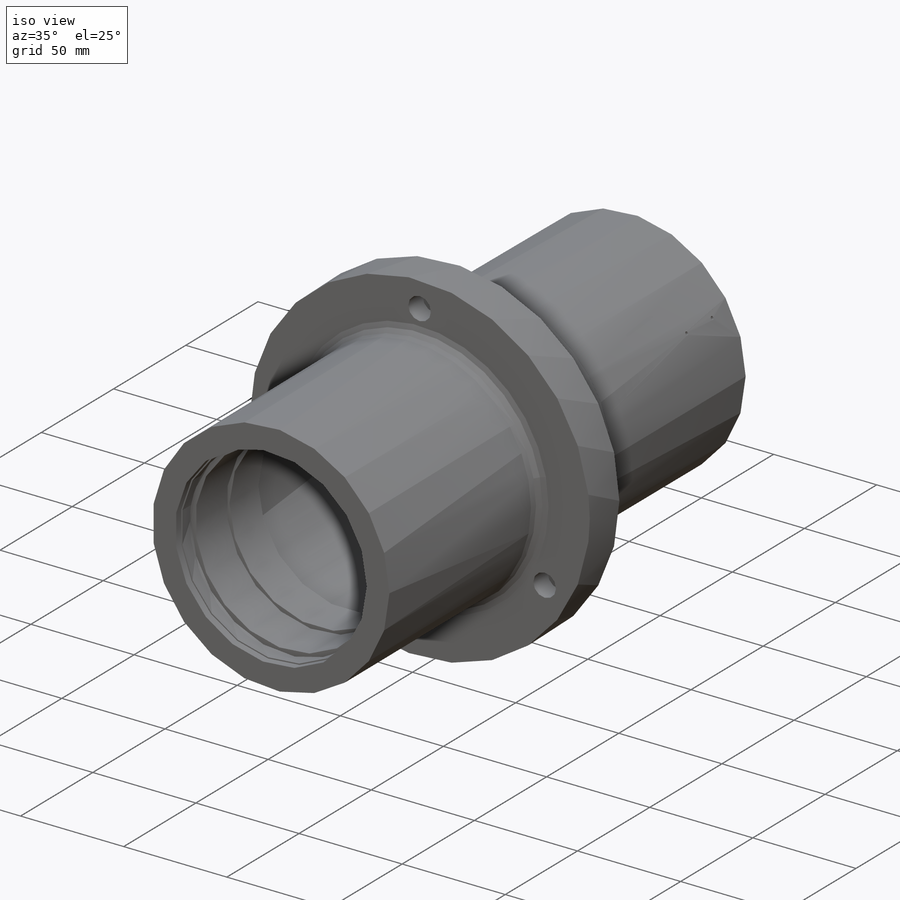
[diagram: iso view]
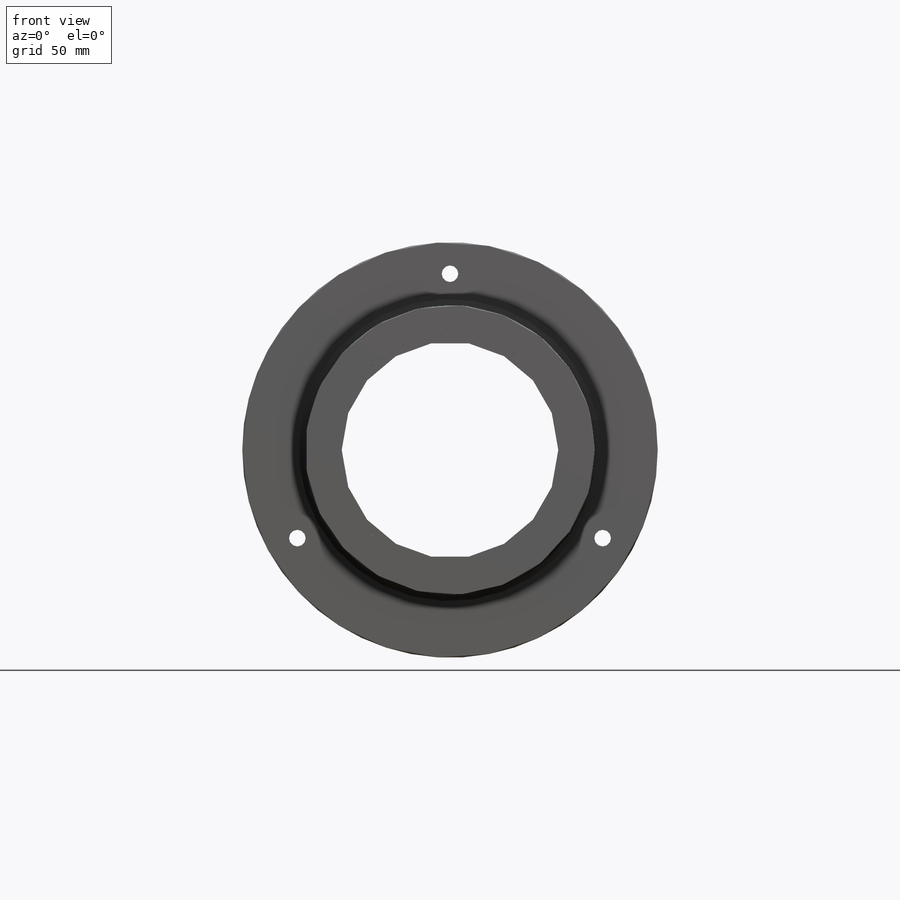
[diagram: front view]
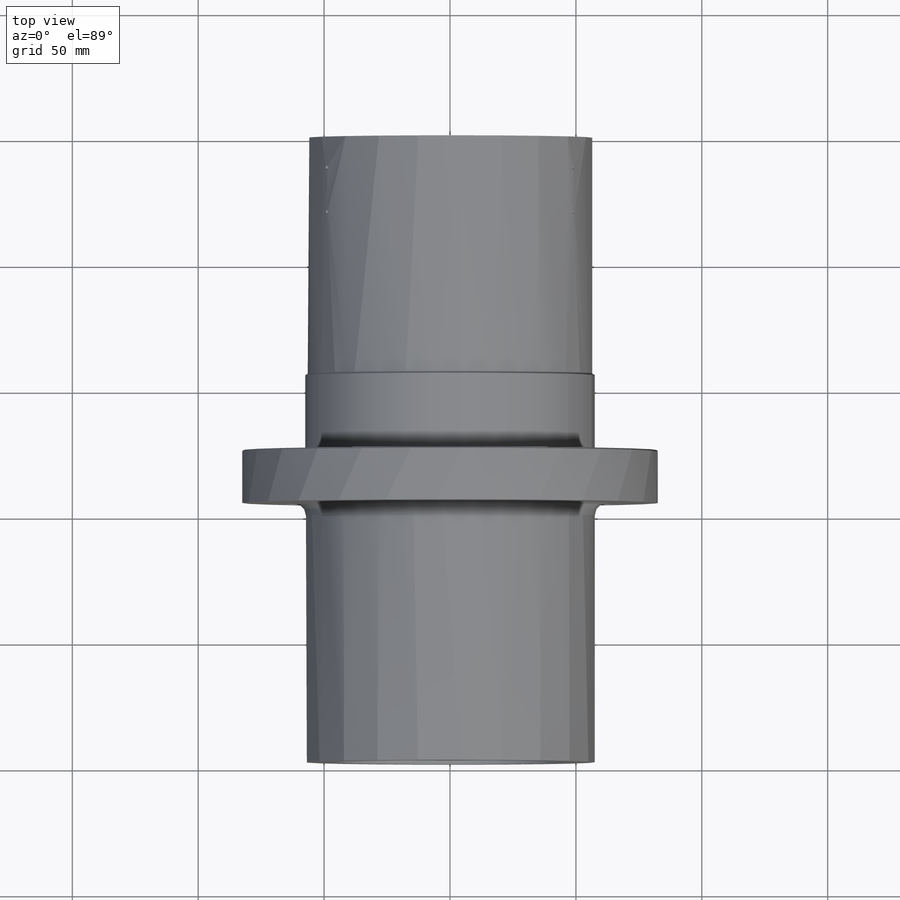
[diagram: top view]
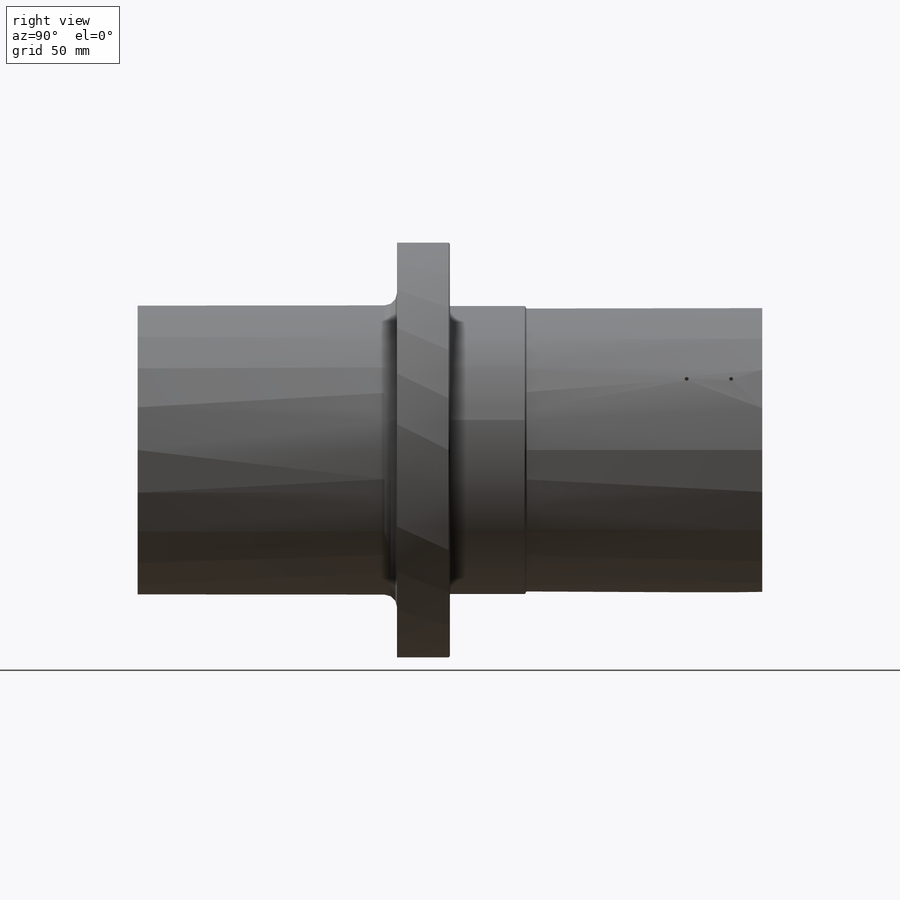
[diagram: right view]
SOLIDWORKS PART (.sldprt)
format: sldprt  version: not decoded by parser v0  size: 726,528 bytes
history: native  units: mm
features: sketch x22, cut_extrude x8, cut_revolve x4, fillet x4, plane x3, hole x3, thread x2, pattern_circular x2, material x1, extrude x1, chamfer x1 (+9 scaffold rows collapsed)
feature tree (60):
  scaffold x9  (default folders/planes/origin — collapsed)
  material  "2024合金"
  plane  "正面"
  plane  "平面"
  plane  "右側面"
  sketch  "ｽｹｯﾁ1"  dims[D1=72.5mm]
  extrude  "押し出し1"  Depth=248.07mm
  sketch  "ｽｹｯﾁ2"  dims[D1=124.07mm]
  cut_revolve  "ｶｯﾄ - 回転1"  Angle=360deg
  fillet  "ﾌｨﾚｯﾄ1"  Radius=5mm
  sketch  "ｽｹｯﾁ6"  dims[D1=~42.659187mm]
  cut_extrude  "ｶｯﾄ - 押し出し2"  Depth=3.557mm
  sketch  "ｽｹｯﾁ7"  dims[D1=~38.231102mm]
  cut_extrude  "ｶｯﾄ - 押し出し3"  [1 undecoded]
  sketch  "ｽｹｯﾁ8"  dims[D1=~44.605701mm]
  cut_extrude  "ｶｯﾄ - 押し出し4"  Depth=32.73mm
  sketch  "ｽｹｯﾁ9"  dims[D1=~46.234031mm]
  cut_extrude  "ｶｯﾄ - 押し出し5"  Depth=3.522mm
  sketch  "ｽｹｯﾁ11"  dims[D1=~46.453815mm]
  cut_extrude  "ｶｯﾄ - 押し出し7"  Depth=37.493mm
  sketch  "ｽｹｯﾁ12"  dims[D1=~38.91348mm]
  cut_extrude  "ｶｯﾄ - 押し出し8"  Depth=195.35mm
  sketch  "ｽｹｯﾁ16"  dims[D1=~45.073205mm]
  cut_extrude  "ｶｯﾄ - 押し出し10"  [1 undecoded]
  thread  "ねじ山2"  Diameter=6mm  [1 undecoded]
  sketch  "ｽｹｯﾁ17"  dims[D1=~43.448577mm]
  cut_extrude  "ｶｯﾄ - 押し出し11"  [1 undecoded]
  thread  "ねじ山1"  Diameter=6mm faceID=5  [1 undecoded]
  sketch  "ｽｹｯﾁ19"
  sketch  "ｽｹｯﾁ22"  dims[D1=~64.425041mm]
  hole  "M6 穴付きねじ用座ぐり穴1"  [1 undecoded]
  sketch  "3Dｽｹｯﾁ4"
  sketch  "ｽｹｯﾁ24"  dims[hole-wizard template sketch: 41 standard entries collapsed; hole parameters kept: c12.通し穴の直径=6.6mm c12.通し穴の深さ=145.07mm c12.座ぐり穴の直径=11.0mm c12.座ぐり穴の深さ=10.0mm]
  pattern_circular  "円形ﾊﾟﾀｰﾝ1"  Count=3 Angle=360deg
  sketch  "ｽｹｯﾁ25"  dims[D1=1.543mm]
  cut_revolve  "ｶｯﾄ - 回転2"  Angle=360deg
  sketch  "ｽｹｯﾁ26"
  cut_revolve  "ｶｯﾄ - 回転3"  Angle=360deg
  hole  "M2x0.4 ねじ穴1"  [1 undecoded]
  sketch  "3Dｽｹｯﾁ5"
  sketch  "ｽｹｯﾁ27"  dims[hole-wizard template sketch: 39 standard entries collapsed; hole parameters kept: c13.ねじ下穴ﾄﾞﾘﾙの直径=1.6mm c13.ねじ下穴ﾄﾞﾘﾙの深さ=12.0mm c13.表面の皿穴の直径=2.5mm c13.D4=~33.297463mm c13.表面の皿穴の角度=90.0deg c14.D5=~14.816244mm c14.ﾄﾞﾘﾙ角度=118.0deg]
  chamfer  "面取り1"  Distance=0.5mm Angle=45deg
  fillet  "ﾌｨﾚｯﾄ2"  Radius=0.2mm
  hole  "M2x0.4 ねじ穴2"  [1 undecoded]
  sketch  "3Dｽｹｯﾁ7"
  sketch  "ｽｹｯﾁ29"  dims[hole-wizard template sketch: 39 standard entries collapsed; hole parameters kept: c13.ねじ下穴ﾄﾞﾘﾙの直径=1.6mm c13.ねじ下穴ﾄﾞﾘﾙの深さ=12.0mm c13.表面の皿穴の直径=2.5mm c13.D4=~33.297463mm c13.表面の皿穴の角度=90.0deg c14.D5=~14.816244mm c14.ﾄﾞﾘﾙ角度=118.0deg]
  pattern_circular  "円形ﾊﾟﾀｰﾝ2"  Count=3 Angle=360deg
  sketch  "ｽｹｯﾁ32"  dims[D1=~55.21911mm]
  sketch  "ｽｹｯﾁ33"  dims[D1=1.0mm]
  cut_revolve  "ｶｯﾄ - 回転4"  Angle=360deg
  fillet  "ﾌｨﾚｯﾄ3"  Radius=0.5mm
  fillet  "ﾌｨﾚｯﾄ4"  Radius=0.5mm
decode coverage: 36 of 47 modeling features carry decoded parameters
note: ~ marks probable driven/reference dimensions
note: 8 parameter values undecoded
summary: no parameter record found for 6 features
note: suppression state not decoded; provenance and decode notes live in map.json
